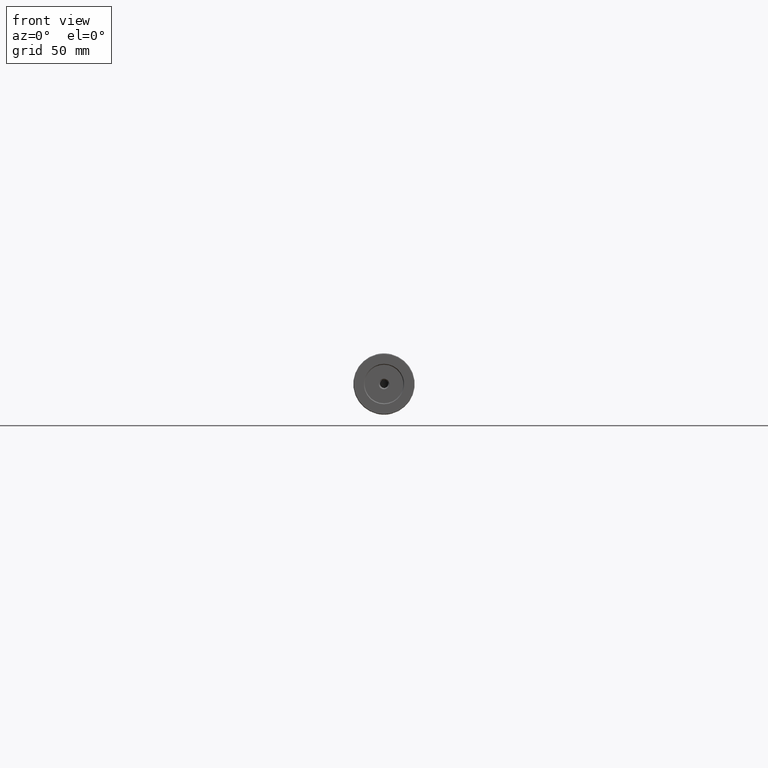
[diagram: clean part render]
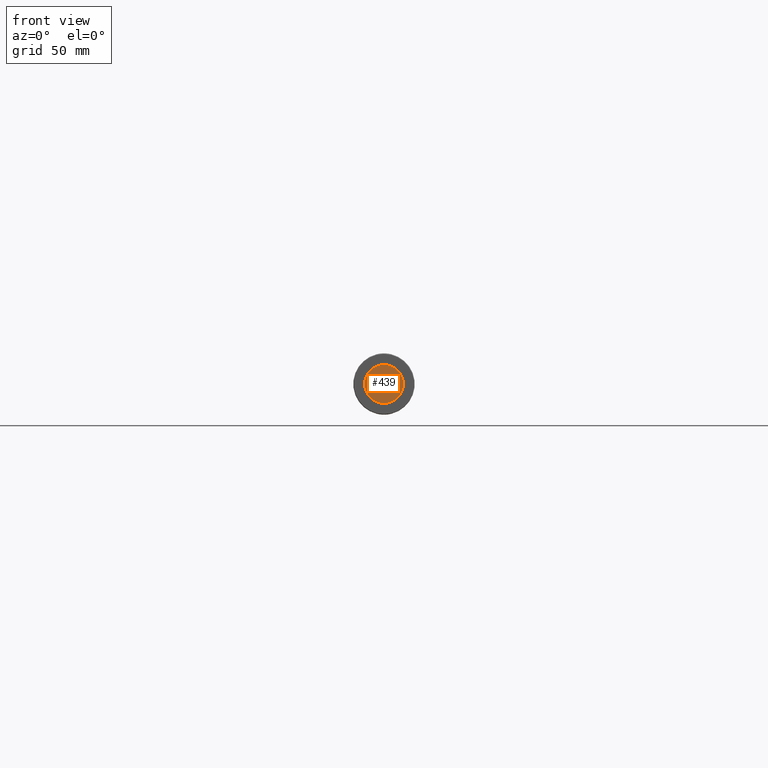
[diagram: same view with one face highlighted and labeled with its STEP entity id]
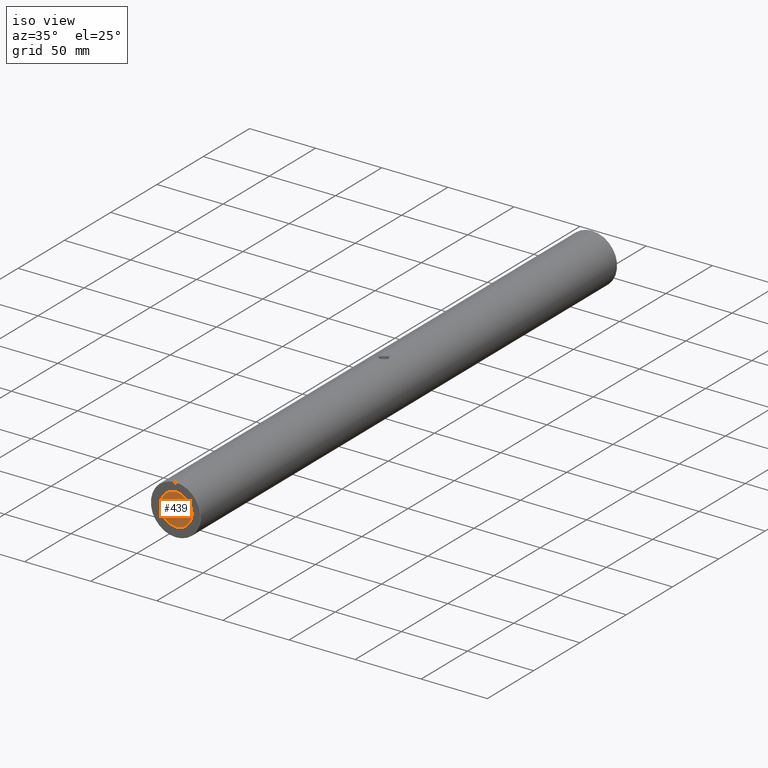
[diagram: same view with one face highlighted and labeled with its STEP entity id]
A machine part, front view. The second image highlights one B-rep face of the part: STEP entity #439.
A second angle (iso view) of the same face is appended — the face is thin or edge-on in the first view.
In plain terms, the highlighted planar face has unit normal (0, -1, 0).
Its self-contained STEP definition (entity closure, byte-faithful):
#12 = VERTEX_POINT ( 'NONE', #485 ) ;
#65 = EDGE_CURVE ( 'NONE', #869, #12, #76, .T. ) ;
#76 = CIRCLE ( 'NONE', #656, 3.250000000000030642 ) ;
#81 = FACE_OUTER_BOUND ( 'NONE', #669, .T. ) ;
#136 = ORIENTED_EDGE ( 'NONE', *, *, #65, .T. ) ;
#139 = ORIENTED_EDGE ( 'NONE', *, *, #761, .F. ) ;
#249 = CIRCLE ( 'NONE', #530, 12.00000000000001066 ) ;
#256 = VERTEX_POINT ( 'NONE', #959 ) ;
#264 = AXIS2_PLACEMENT_3D ( 'NONE', #469, #997, #325 ) ;
#311 = FACE_BOUND ( 'NONE', #335, .T. ) ;
#325 = DIRECTION ( 'NONE',  ( 0.0000000000000000000, 0.0000000000000000000, 1.000000000000000000 ) ) ;
#335 = EDGE_LOOP ( 'NONE', ( #918, #136 ) ) ;
#348 = CARTESIAN_POINT ( 'NONE',  ( -85.22679983354142053, -228.7613399916742765, 412.0000000000000568 ) ) ;
#400 = EDGE_CURVE ( 'NONE', #792, #256, #615, .T. ) ;
#427 = AXIS2_PLACEMENT_3D ( 'NONE', #909, #532, #841 ) ;
#438 = CARTESIAN_POINT ( 'NONE',  ( -85.22679983354142053, -228.7613399916742765, 403.2500000000000568 ) ) ;
#439 = ADVANCED_FACE ( 'NONE', ( #311, #81 ), #933, .T. ) ;
#469 = CARTESIAN_POINT ( 'NONE',  ( -85.22679983354142053, -228.7613399916742765, 400.0000000000000000 ) ) ;
#485 = CARTESIAN_POINT ( 'NONE',  ( -85.22679983354142053, -228.7613399916742765, 396.7500000000000000 ) ) ;
#511 = DIRECTION ( 'NONE',  ( 0.0000000000000000000, 0.0000000000000000000, -1.000000000000000000 ) ) ;
#530 = AXIS2_PLACEMENT_3D ( 'NONE', #968, #888, #608 ) ;
#531 = DIRECTION ( 'NONE',  ( -0.0000000000000000000, 1.000000000000000000, -0.0000000000000000000 ) ) ;
#532 = DIRECTION ( 'NONE',  ( -0.0000000000000000000, 1.000000000000000000, -0.0000000000000000000 ) ) ;
#563 = AXIS2_PLACEMENT_3D ( 'NONE', #648, #944, #948 ) ;
#572 = ORIENTED_EDGE ( 'NONE', *, *, #400, .F. ) ;
#608 = DIRECTION ( 'NONE',  ( 0.0000000000000000000, 0.0000000000000000000, -1.000000000000000000 ) ) ;
#615 = CIRCLE ( 'NONE', #427, 12.00000000000001066 ) ;
#648 = CARTESIAN_POINT ( 'NONE',  ( -85.22679983354142053, -228.7613399916742765, 400.0000000000000000 ) ) ;
#656 = AXIS2_PLACEMENT_3D ( 'NONE', #824, #531, #511 ) ;
#664 = EDGE_CURVE ( 'NONE', #12, #869, #741, .T. ) ;
#669 = EDGE_LOOP ( 'NONE', ( #572, #139 ) ) ;
#741 = CIRCLE ( 'NONE', #563, 3.250000000000030642 ) ;
#761 = EDGE_CURVE ( 'NONE', #256, #792, #249, .T. ) ;
#792 = VERTEX_POINT ( 'NONE', #348 ) ;
#824 = CARTESIAN_POINT ( 'NONE',  ( -85.22679983354142053, -228.7613399916742765, 400.0000000000000000 ) ) ;
#841 = DIRECTION ( 'NONE',  ( 0.0000000000000000000, 0.0000000000000000000, -1.000000000000000000 ) ) ;
#869 = VERTEX_POINT ( 'NONE', #438 ) ;
#888 = DIRECTION ( 'NONE',  ( -0.0000000000000000000, 1.000000000000000000, -0.0000000000000000000 ) ) ;
#909 = CARTESIAN_POINT ( 'NONE',  ( -85.22679983354142053, -228.7613399916742765, 400.0000000000000000 ) ) ;
#918 = ORIENTED_EDGE ( 'NONE', *, *, #664, .T. ) ;
#933 = PLANE ( 'NONE',  #264 ) ;
#944 = DIRECTION ( 'NONE',  ( -0.0000000000000000000, 1.000000000000000000, -0.0000000000000000000 ) ) ;
#948 = DIRECTION ( 'NONE',  ( 0.0000000000000000000, 0.0000000000000000000, -1.000000000000000000 ) ) ;
#959 = CARTESIAN_POINT ( 'NONE',  ( -85.22679983354142053, -228.7613399916742765, 388.0000000000000000 ) ) ;
#968 = CARTESIAN_POINT ( 'NONE',  ( -85.22679983354142053, -228.7613399916742765, 400.0000000000000000 ) ) ;
#997 = DIRECTION ( 'NONE',  ( 0.0000000000000000000, -1.000000000000000000, 0.0000000000000000000 ) ) ;